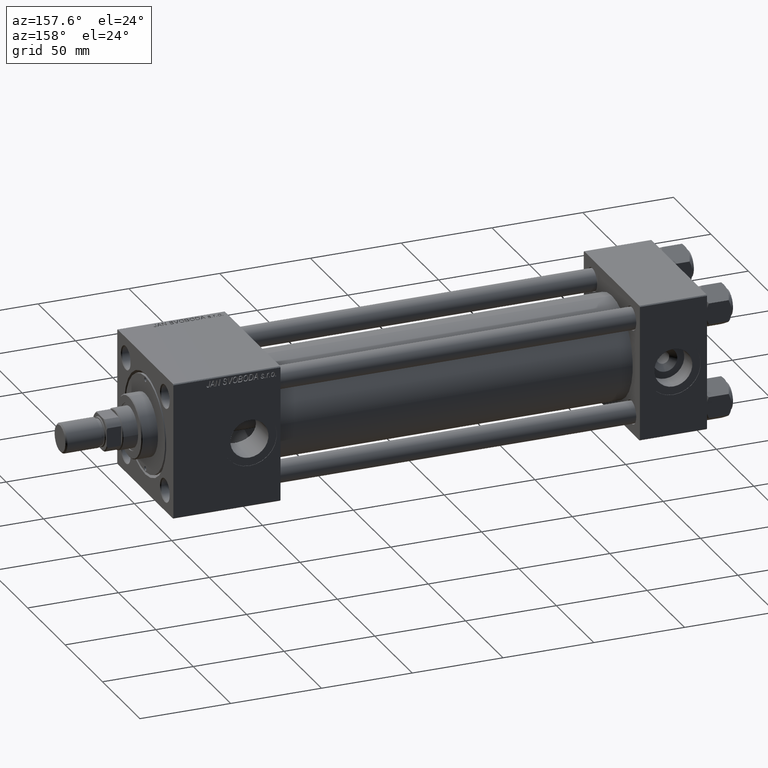
[diagram: clean part render]
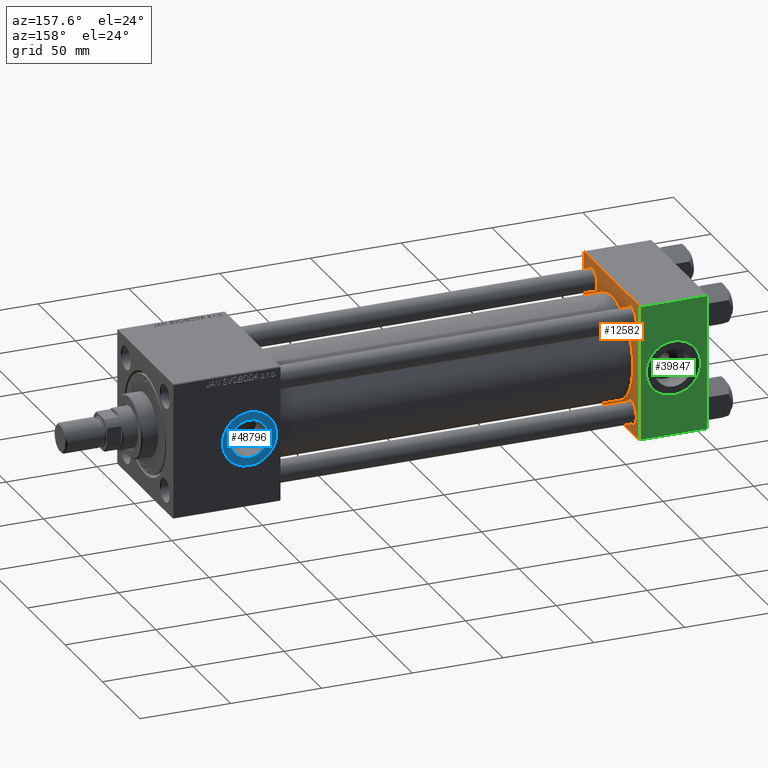
[diagram: same view with three faces highlighted in distinct colors, each labeled with its STEP entity id]
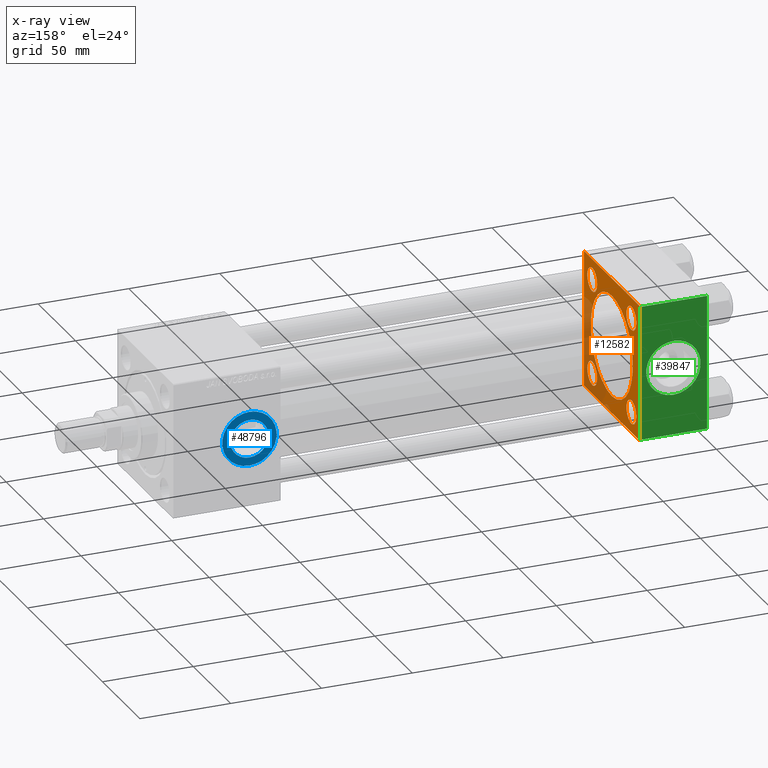
[diagram: x-ray of the same camera — body ghosted, the three highlighted faces saturated]
A machine part, auxiliary view with three faces highlighted in distinct colors.
The next image is the same camera in x-ray (body ghosted, the three faces saturated) — at least one of them is partly hidden behind the body in this view.
Their STEP definitions:

[orange] entity #12582 — the highlighted planar face has unit normal (-1, 0, 0).
#255 = EDGE_CURVE ( 'NONE', #44581, #46013, #25459, .T. ) ;
#289 = CARTESIAN_POINT ( 'NONE',  ( 37.00000000000000000, -26.14999999999999147, 19.65000000000000213 ) ) ;
#762 = FACE_OUTER_BOUND ( 'NONE', #45639, .T. ) ;
#1366 = CIRCLE ( 'NONE', #23532, 6.500000000000008882 ) ;
#1973 = DIRECTION ( 'NONE',  ( -1.000000000000000000, 0.000000000000000000, -0.000000000000000000 ) ) ;
#2186 = ORIENTED_EDGE ( 'NONE', *, *, #34158, .T. ) ;
#2207 = DIRECTION ( 'NONE',  ( -1.000000000000000000, 0.000000000000000000, -0.000000000000000000 ) ) ;
#2422 = ORIENTED_EDGE ( 'NONE', *, *, #8521, .T. ) ;
#3099 = DIRECTION ( 'NONE',  ( 0.000000000000000000, 0.000000000000000000, 1.000000000000000000 ) ) ;
#3203 = CARTESIAN_POINT ( 'NONE',  ( 37.00000000000000000, -37.50000000000000000, -37.00000000000003553 ) ) ;
#3360 = CARTESIAN_POINT ( 'NONE',  ( 37.00000000000000000, 26.14999999999999858, -32.65000000000000568 ) ) ;
#3429 = CARTESIAN_POINT ( 'NONE',  ( 37.00000000000000000, -37.50000000000000711, 37.49999999999999289 ) ) ;
#3978 = CARTESIAN_POINT ( 'NONE',  ( 37.00000000000000000, -37.50000000000000711, 36.99999999999999289 ) ) ;
#4090 = EDGE_CURVE ( 'NONE', #16470, #23490, #27183, .T. ) ;
#4287 = ORIENTED_EDGE ( 'NONE', *, *, #50598, .T. ) ;
#4623 = CARTESIAN_POINT ( 'NONE',  ( 37.00000000000000000, 0.000000000000000000, 0.000000000000000000 ) ) ;
#4667 = CARTESIAN_POINT ( 'NONE',  ( 37.00000000000000711, -2.602085213965210642E-15, 0.000000000000000000 ) ) ;
#4882 = FACE_BOUND ( 'NONE', #41308, .T. ) ;
#4983 = CARTESIAN_POINT ( 'NONE',  ( 37.00000000000000000, 37.49999999999999289, 37.50000000000000000 ) ) ;
#5054 = AXIS2_PLACEMENT_3D ( 'NONE', #4667, #12893, #9286 ) ;
#5485 = CARTESIAN_POINT ( 'NONE',  ( 37.00000000000000000, 36.99999999999999289, 37.50000000000000000 ) ) ;
#5754 = CIRCLE ( 'NONE', #35268, 6.500000000000002665 ) ;
#5974 = DIRECTION ( 'NONE',  ( -1.000000000000000000, 0.000000000000000000, -0.000000000000000000 ) ) ;
#6064 = DIRECTION ( 'NONE',  ( 0.000000000000000000, 0.000000000000000000, 1.000000000000000000 ) ) ;
#6203 = EDGE_CURVE ( 'NONE', #28345, #32893, #32126, .T. ) ;
#6663 = CARTESIAN_POINT ( 'NONE',  ( 37.00000000000000711, -2.602085213965210642E-15, 0.000000000000000000 ) ) ;
#6678 = EDGE_LOOP ( 'NONE', ( #26174, #4287 ) ) ;
#7141 = CIRCLE ( 'NONE', #30916, 6.500000000000002665 ) ;
#7532 = LINE ( 'NONE', #19617, #33572 ) ;
#7903 = VECTOR ( 'NONE', #17633, 1000.000000000000000 ) ;
#8521 = EDGE_CURVE ( 'NONE', #12115, #23452, #25531, .T. ) ;
#8741 = EDGE_CURVE ( 'NONE', #32208, #15024, #37877, .T. ) ;
#8877 = ORIENTED_EDGE ( 'NONE', *, *, #39953, .T. ) ;
#9286 = DIRECTION ( 'NONE',  ( 0.000000000000000000, 0.000000000000000000, 1.000000000000000000 ) ) ;
#9583 = CARTESIAN_POINT ( 'NONE',  ( 37.00000000000000000, 26.14999999999999858, 26.15000000000000213 ) ) ;
#12115 = VERTEX_POINT ( 'NONE', #3203 ) ;
#12154 = DIRECTION ( 'NONE',  ( 0.000000000000000000, -1.000000000000000000, -9.251858538542971581E-17 ) ) ;
#12225 = DIRECTION ( 'NONE',  ( 0.000000000000000000, 0.000000000000000000, 1.000000000000000000 ) ) ;
#12338 = CARTESIAN_POINT ( 'NONE',  ( 37.00000000000000000, 36.99999999999999289, 37.50000000000000000 ) ) ;
#12527 = CARTESIAN_POINT ( 'NONE',  ( 37.00000000000000000, -26.14999999999999147, -26.15000000000000924 ) ) ;
#12582 = ADVANCED_FACE ( 'NONE', ( #17641, #20037, #48967, #4882, #41286, #762 ), #16698, .F. ) ;
#12583 = AXIS2_PLACEMENT_3D ( 'NONE', #4623, #2207, #17899 ) ;
#12699 = DIRECTION ( 'NONE',  ( 0.000000000000000000, 0.000000000000000000, -1.000000000000000000 ) ) ;
#12893 = DIRECTION ( 'NONE',  ( 1.000000000000000000, -0.000000000000000000, 0.000000000000000000 ) ) ;
#13251 = CARTESIAN_POINT ( 'NONE',  ( 37.00000000000000000, 26.14999999999999858, 19.64999999999999858 ) ) ;
#13770 = CARTESIAN_POINT ( 'NONE',  ( 37.00000000000000000, -26.14999999999999147, 26.15000000000000924 ) ) ;
#14189 = DIRECTION ( 'NONE',  ( 0.000000000000000000, 0.000000000000000000, 1.000000000000000000 ) ) ;
#14514 = DIRECTION ( 'NONE',  ( 0.000000000000000000, 9.251858538542971581E-17, -1.000000000000000000 ) ) ;
#14685 = DIRECTION ( 'NONE',  ( -1.000000000000000000, 0.000000000000000000, -0.000000000000000000 ) ) ;
#15024 = VERTEX_POINT ( 'NONE', #18917 ) ;
#15457 = DIRECTION ( 'NONE',  ( -0.000000000000000000, -0.7071067811865474617, -0.7071067811865474617 ) ) ;
#15642 = ORIENTED_EDGE ( 'NONE', *, *, #8741, .F. ) ;
#16006 = CARTESIAN_POINT ( 'NONE',  ( 37.00000000000000000, 26.14999999999999858, -19.65000000000000213 ) ) ;
#16224 = VERTEX_POINT ( 'NONE', #3360 ) ;
#16337 = DIRECTION ( 'NONE',  ( -1.000000000000000000, 0.000000000000000000, -0.000000000000000000 ) ) ;
#16470 = VERTEX_POINT ( 'NONE', #25168 ) ;
#16698 = PLANE ( 'NONE',  #12583 ) ;
#17047 = EDGE_LOOP ( 'NONE', ( #26974, #38414 ) ) ;
#17633 = DIRECTION ( 'NONE',  ( 0.000000000000000000, -1.000000000000000000, -9.251858538542972814E-17 ) ) ;
#17641 = FACE_BOUND ( 'NONE', #17047, .T. ) ;
#17899 = DIRECTION ( 'NONE',  ( -0.000000000000000000, 0.000000000000000000, 1.000000000000000000 ) ) ;
#18159 = AXIS2_PLACEMENT_3D ( 'NONE', #39965, #16337, #12225 ) ;
#18878 = AXIS2_PLACEMENT_3D ( 'NONE', #9583, #5974, #14189 ) ;
#18897 = ORIENTED_EDGE ( 'NONE', *, *, #25107, .T. ) ;
#18917 = CARTESIAN_POINT ( 'NONE',  ( 37.00000000000000711, 8.269258236473784371E-16, -28.00000000000000000 ) ) ;
#18928 = CIRCLE ( 'NONE', #47633, 6.500000000000002665 ) ;
#19392 = DIRECTION ( 'NONE',  ( -1.000000000000000000, 0.000000000000000000, -0.000000000000000000 ) ) ;
#19617 = CARTESIAN_POINT ( 'NONE',  ( 37.00000000000000000, 37.49999999999999289, 37.50000000000000000 ) ) ;
#19729 = DIRECTION ( 'NONE',  ( -1.000000000000000000, 0.000000000000000000, -0.000000000000000000 ) ) ;
#20037 = FACE_BOUND ( 'NONE', #6678, .T. ) ;
#20180 = EDGE_CURVE ( 'NONE', #23490, #16470, #34967, .T. ) ;
#20670 = VERTEX_POINT ( 'NONE', #3978 ) ;
#20672 = CARTESIAN_POINT ( 'NONE',  ( 37.00000000000000000, -37.00000000000002132, -37.50000000000000711 ) ) ;
#21672 = CARTESIAN_POINT ( 'NONE',  ( 37.00000000000000000, -37.00000000000002132, -37.50000000000000711 ) ) ;
#21808 = VERTEX_POINT ( 'NONE', #37197 ) ;
#21971 = CARTESIAN_POINT ( 'NONE',  ( 37.00000000000000000, 37.49999999999999289, -36.99999999999998579 ) ) ;
#22427 = VERTEX_POINT ( 'NONE', #289 ) ;
#22430 = DIRECTION ( 'NONE',  ( 0.000000000000000000, 0.7071067811865524577, -0.7071067811865426878 ) ) ;
#22568 = EDGE_CURVE ( 'NONE', #43385, #31787, #38025, .T. ) ;
#22861 = VECTOR ( 'NONE', #14514, 1000.000000000000000 ) ;
#23424 = LINE ( 'NONE', #28744, #45721 ) ;
#23452 = VERTEX_POINT ( 'NONE', #20672 ) ;
#23490 = VERTEX_POINT ( 'NONE', #34477 ) ;
#23532 = AXIS2_PLACEMENT_3D ( 'NONE', #49865, #14685, #3099 ) ;
#23846 = EDGE_CURVE ( 'NONE', #43385, #23452, #33305, .T. ) ;
#24266 = LINE ( 'NONE', #4983, #37258 ) ;
#24380 = DIRECTION ( 'NONE',  ( 0.000000000000000000, 0.000000000000000000, 1.000000000000000000 ) ) ;
#25107 = EDGE_CURVE ( 'NONE', #21808, #22427, #1366, .T. ) ;
#25168 = CARTESIAN_POINT ( 'NONE',  ( 37.00000000000000000, -26.14999999999999147, -19.65000000000000924 ) ) ;
#25301 = EDGE_CURVE ( 'NONE', #15024, #32208, #43220, .T. ) ;
#25459 = CIRCLE ( 'NONE', #18878, 6.500000000000002665 ) ;
#25509 = ORIENTED_EDGE ( 'NONE', *, *, #25301, .F. ) ;
#25531 = LINE ( 'NONE', #21672, #49343 ) ;
#25566 = DIRECTION ( 'NONE',  ( 0.000000000000000000, 0.000000000000000000, 1.000000000000000000 ) ) ;
#25651 = VECTOR ( 'NONE', #28265, 1000.000000000000114 ) ;
#25832 = ORIENTED_EDGE ( 'NONE', *, *, #23846, .F. ) ;
#26090 = LINE ( 'NONE', #3429, #22861 ) ;
#26155 = CARTESIAN_POINT ( 'NONE',  ( 37.00000000000000000, 36.99999999999997868, -37.50000000000000000 ) ) ;
#26174 = ORIENTED_EDGE ( 'NONE', *, *, #31318, .T. ) ;
#26974 = ORIENTED_EDGE ( 'NONE', *, *, #20180, .T. ) ;
#27183 = CIRCLE ( 'NONE', #18159, 6.500000000000002665 ) ;
#27795 = CARTESIAN_POINT ( 'NONE',  ( 37.00000000000000000, 26.14999999999999858, 32.65000000000001279 ) ) ;
#28265 = DIRECTION ( 'NONE',  ( 0.000000000000000000, -0.7071067811865474617, 0.7071067811865474617 ) ) ;
#28345 = VERTEX_POINT ( 'NONE', #48673 ) ;
#28744 = CARTESIAN_POINT ( 'NONE',  ( 37.00000000000000000, -37.50000000000000711, 36.99999999999999289 ) ) ;
#29553 = EDGE_LOOP ( 'NONE', ( #2186, #18897 ) ) ;
#29791 = ORIENTED_EDGE ( 'NONE', *, *, #43657, .T. ) ;
#30561 = EDGE_CURVE ( 'NONE', #32893, #31637, #7532, .T. ) ;
#30807 = DIRECTION ( 'NONE',  ( 1.000000000000000000, -0.000000000000000000, 0.000000000000000000 ) ) ;
#30916 = AXIS2_PLACEMENT_3D ( 'NONE', #30954, #19392, #50717 ) ;
#30954 = CARTESIAN_POINT ( 'NONE',  ( 37.00000000000000000, 26.14999999999999858, 26.15000000000000213 ) ) ;
#31318 = EDGE_CURVE ( 'NONE', #16224, #50056, #18928, .T. ) ;
#31323 = CARTESIAN_POINT ( 'NONE',  ( 37.00000000000000711, -2.602085213965210642E-15, 28.00000000000000000 ) ) ;
#31548 = CIRCLE ( 'NONE', #42181, 6.500000000000008882 ) ;
#31637 = VERTEX_POINT ( 'NONE', #45139 ) ;
#31787 = VERTEX_POINT ( 'NONE', #21971 ) ;
#32126 = LINE ( 'NONE', #12338, #25651 ) ;
#32208 = VERTEX_POINT ( 'NONE', #31323 ) ;
#32583 = CARTESIAN_POINT ( 'NONE',  ( 37.00000000000000000, 26.14999999999999858, -26.15000000000000213 ) ) ;
#32893 = VERTEX_POINT ( 'NONE', #5485 ) ;
#33305 = LINE ( 'NONE', #40513, #7903 ) ;
#33550 = DIRECTION ( 'NONE',  ( -1.000000000000000000, 0.000000000000000000, -0.000000000000000000 ) ) ;
#33572 = VECTOR ( 'NONE', #12154, 1000.000000000000000 ) ;
#33585 = EDGE_CURVE ( 'NONE', #28345, #31787, #24266, .T. ) ;
#34158 = EDGE_CURVE ( 'NONE', #22427, #21808, #31548, .T. ) ;
#34477 = CARTESIAN_POINT ( 'NONE',  ( 37.00000000000000000, -26.14999999999999147, -32.65000000000001279 ) ) ;
#34967 = CIRCLE ( 'NONE', #39088, 6.500000000000002665 ) ;
#35268 = AXIS2_PLACEMENT_3D ( 'NONE', #37116, #48675, #25566 ) ;
#35435 = ORIENTED_EDGE ( 'NONE', *, *, #33585, .F. ) ;
#35641 = DIRECTION ( 'NONE',  ( 0.000000000000000000, 0.000000000000000000, 1.000000000000000000 ) ) ;
#36939 = ORIENTED_EDGE ( 'NONE', *, *, #44070, .T. ) ;
#37116 = CARTESIAN_POINT ( 'NONE',  ( 37.00000000000000000, 26.14999999999999858, -26.15000000000000213 ) ) ;
#37197 = CARTESIAN_POINT ( 'NONE',  ( 37.00000000000000000, -26.14999999999999147, 32.65000000000001990 ) ) ;
#37258 = VECTOR ( 'NONE', #12699, 1000.000000000000000 ) ;
#37877 = CIRCLE ( 'NONE', #5054, 28.00000000000000000 ) ;
#38025 = LINE ( 'NONE', #49824, #40703 ) ;
#38414 = ORIENTED_EDGE ( 'NONE', *, *, #4090, .T. ) ;
#38696 = ORIENTED_EDGE ( 'NONE', *, *, #6203, .T. ) ;
#39088 = AXIS2_PLACEMENT_3D ( 'NONE', #12527, #19729, #35641 ) ;
#39533 = ORIENTED_EDGE ( 'NONE', *, *, #30561, .T. ) ;
#39953 = EDGE_CURVE ( 'NONE', #46013, #44581, #7141, .T. ) ;
#39965 = CARTESIAN_POINT ( 'NONE',  ( 37.00000000000000000, -26.14999999999999147, -26.15000000000000924 ) ) ;
#40513 = CARTESIAN_POINT ( 'NONE',  ( 37.00000000000000000, 37.49999999999999289, -37.50000000000000000 ) ) ;
#40531 = EDGE_LOOP ( 'NONE', ( #15642, #25509 ) ) ;
#40703 = VECTOR ( 'NONE', #49574, 1000.000000000000114 ) ;
#41286 = FACE_BOUND ( 'NONE', #40531, .T. ) ;
#41308 = EDGE_LOOP ( 'NONE', ( #47049, #8877 ) ) ;
#41345 = ORIENTED_EDGE ( 'NONE', *, *, #22568, .T. ) ;
#42124 = DIRECTION ( 'NONE',  ( 0.000000000000000000, 0.000000000000000000, 1.000000000000000000 ) ) ;
#42181 = AXIS2_PLACEMENT_3D ( 'NONE', #13770, #33550, #6064 ) ;
#43220 = CIRCLE ( 'NONE', #46509, 28.00000000000000000 ) ;
#43385 = VERTEX_POINT ( 'NONE', #26155 ) ;
#43657 = EDGE_CURVE ( 'NONE', #20670, #12115, #26090, .T. ) ;
#44070 = EDGE_CURVE ( 'NONE', #31637, #20670, #23424, .T. ) ;
#44581 = VERTEX_POINT ( 'NONE', #13251 ) ;
#45139 = CARTESIAN_POINT ( 'NONE',  ( 37.00000000000000000, -37.00000000000000711, 37.49999999999999289 ) ) ;
#45639 = EDGE_LOOP ( 'NONE', ( #25832, #41345, #35435, #38696, #39533, #36939, #29791, #2422 ) ) ;
#45721 = VECTOR ( 'NONE', #15457, 1000.000000000000114 ) ;
#46013 = VERTEX_POINT ( 'NONE', #27795 ) ;
#46509 = AXIS2_PLACEMENT_3D ( 'NONE', #6663, #30807, #42124 ) ;
#47049 = ORIENTED_EDGE ( 'NONE', *, *, #255, .T. ) ;
#47633 = AXIS2_PLACEMENT_3D ( 'NONE', #32583, #1973, #24380 ) ;
#48673 = CARTESIAN_POINT ( 'NONE',  ( 37.00000000000000000, 37.49999999999999289, 37.00000000000000000 ) ) ;
#48675 = DIRECTION ( 'NONE',  ( -1.000000000000000000, 0.000000000000000000, -0.000000000000000000 ) ) ;
#48967 = FACE_BOUND ( 'NONE', #29553, .T. ) ;
#49343 = VECTOR ( 'NONE', #22430, 1000.000000000000000 ) ;
#49574 = DIRECTION ( 'NONE',  ( -0.000000000000000000, 0.7071067811865474617, 0.7071067811865474617 ) ) ;
#49824 = CARTESIAN_POINT ( 'NONE',  ( 37.00000000000000000, 37.49999999999999289, -36.99999999999998579 ) ) ;
#49865 = CARTESIAN_POINT ( 'NONE',  ( 37.00000000000000000, -26.14999999999999147, 26.15000000000000924 ) ) ;
#50056 = VERTEX_POINT ( 'NONE', #16006 ) ;
#50598 = EDGE_CURVE ( 'NONE', #50056, #16224, #5754, .T. ) ;
#50717 = DIRECTION ( 'NONE',  ( 0.000000000000000000, 0.000000000000000000, 1.000000000000000000 ) ) ;

[blue] entity #48796 — the highlighted planar face has unit normal (0, 1, 0).
#553 = EDGE_CURVE ( 'NONE', #9110, #34840, #46740, .T. ) ;
#3403 = EDGE_CURVE ( 'NONE', #34359, #33587, #41159, .T. ) ;
#4373 = DIRECTION ( 'NONE',  ( 0.000000000000000000, 1.000000000000000000, 0.000000000000000000 ) ) ;
#4893 = CARTESIAN_POINT ( 'NONE',  ( 252.0000000000000000, 37.29999999999999716, 0.000000000000000000 ) ) ;
#6413 = ORIENTED_EDGE ( 'NONE', *, *, #553, .F. ) ;
#8207 = AXIS2_PLACEMENT_3D ( 'NONE', #8377, #11459, #27151 ) ;
#8377 = CARTESIAN_POINT ( 'NONE',  ( 252.0000000000000000, 37.29999999999999005, 0.000000000000000000 ) ) ;
#9110 = VERTEX_POINT ( 'NONE', #40450 ) ;
#9722 = CIRCLE ( 'NONE', #10523, 15.00000000000002487 ) ;
#10288 = DIRECTION ( 'NONE',  ( 0.000000000000000000, 1.000000000000000000, 0.000000000000000000 ) ) ;
#10523 = AXIS2_PLACEMENT_3D ( 'NONE', #14392, #10288, #22364 ) ;
#11459 = DIRECTION ( 'NONE',  ( 0.000000000000000000, 1.000000000000000000, 0.000000000000000000 ) ) ;
#13858 = CARTESIAN_POINT ( 'NONE',  ( 252.0000000000000000, 37.29999999999999005, 0.000000000000000000 ) ) ;
#14392 = CARTESIAN_POINT ( 'NONE',  ( 252.0000000000000000, 37.29999999999999716, 0.000000000000000000 ) ) ;
#17531 = ORIENTED_EDGE ( 'NONE', *, *, #3403, .T. ) ;
#18846 = PLANE ( 'NONE',  #45060 ) ;
#19316 = CIRCLE ( 'NONE', #28341, 10.47999999999998622 ) ;
#19351 = FACE_BOUND ( 'NONE', #44804, .T. ) ;
#21352 = EDGE_CURVE ( 'NONE', #34840, #9110, #19316, .T. ) ;
#22054 = EDGE_LOOP ( 'NONE', ( #49687, #17531 ) ) ;
#22364 = DIRECTION ( 'NONE',  ( 0.000000000000000000, 0.000000000000000000, 1.000000000000000000 ) ) ;
#23607 = ORIENTED_EDGE ( 'NONE', *, *, #21352, .F. ) ;
#25684 = DIRECTION ( 'NONE',  ( 0.000000000000000000, 1.000000000000000000, 0.000000000000000000 ) ) ;
#27151 = DIRECTION ( 'NONE',  ( 0.000000000000000000, 0.000000000000000000, 1.000000000000000000 ) ) ;
#27550 = CARTESIAN_POINT ( 'NONE',  ( 252.0000000000000000, 37.29999999999999005, 10.47999999999998622 ) ) ;
#28341 = AXIS2_PLACEMENT_3D ( 'NONE', #13858, #25684, #45188 ) ;
#30410 = DIRECTION ( 'NONE',  ( 0.000000000000000000, -0.000000000000000000, 1.000000000000000000 ) ) ;
#32389 = DIRECTION ( 'NONE',  ( 0.000000000000000000, 0.000000000000000000, 1.000000000000000000 ) ) ;
#32937 = AXIS2_PLACEMENT_3D ( 'NONE', #4893, #4373, #32389 ) ;
#33587 = VERTEX_POINT ( 'NONE', #39163 ) ;
#34359 = VERTEX_POINT ( 'NONE', #50719 ) ;
#34840 = VERTEX_POINT ( 'NONE', #27550 ) ;
#38615 = CARTESIAN_POINT ( 'NONE',  ( 252.0000000000000000, 37.29999999999999716, 0.000000000000000000 ) ) ;
#38866 = FACE_OUTER_BOUND ( 'NONE', #22054, .T. ) ;
#39163 = CARTESIAN_POINT ( 'NONE',  ( 252.0000000000000000, 37.29999999999999716, 15.00000000000002487 ) ) ;
#40450 = CARTESIAN_POINT ( 'NONE',  ( 252.0000000000000000, 37.29999999999999005, -10.47999999999998622 ) ) ;
#41159 = CIRCLE ( 'NONE', #32937, 15.00000000000002487 ) ;
#44804 = EDGE_LOOP ( 'NONE', ( #23607, #6413 ) ) ;
#45060 = AXIS2_PLACEMENT_3D ( 'NONE', #38615, #50162, #30410 ) ;
#45188 = DIRECTION ( 'NONE',  ( 0.000000000000000000, 0.000000000000000000, 1.000000000000000000 ) ) ;
#46166 = EDGE_CURVE ( 'NONE', #33587, #34359, #9722, .T. ) ;
#46740 = CIRCLE ( 'NONE', #8207, 10.47999999999998622 ) ;
#48796 = ADVANCED_FACE ( 'NONE', ( #19351, #38866 ), #18846, .T. ) ;
#49687 = ORIENTED_EDGE ( 'NONE', *, *, #46166, .T. ) ;
#50162 = DIRECTION ( 'NONE',  ( 0.000000000000000000, 1.000000000000000000, 0.000000000000000000 ) ) ;
#50719 = CARTESIAN_POINT ( 'NONE',  ( 252.0000000000000000, 37.29999999999999716, -15.00000000000002487 ) ) ;

[green] entity #39847 — the highlighted planar face has unit normal (0, 1, 0).
#1951 = DIRECTION ( 'NONE',  ( 1.000000000000000000, 0.000000000000000000, 0.000000000000000000 ) ) ;
#2208 = LINE ( 'NONE', #2455, #10264 ) ;
#2455 = CARTESIAN_POINT ( 'NONE',  ( 37.00000000000000000, 37.49999999999999289, 37.00000000000000000 ) ) ;
#2692 = DIRECTION ( 'NONE',  ( 0.000000000000000000, 0.000000000000000000, 1.000000000000000000 ) ) ;
#3262 = VERTEX_POINT ( 'NONE', #27260 ) ;
#3944 = VECTOR ( 'NONE', #30001, 1000.000000000000000 ) ;
#4983 = CARTESIAN_POINT ( 'NONE',  ( 37.00000000000000000, 37.49999999999999289, 37.50000000000000000 ) ) ;
#5270 = DIRECTION ( 'NONE',  ( 0.000000000000000000, 0.000000000000000000, -1.000000000000000000 ) ) ;
#6255 = AXIS2_PLACEMENT_3D ( 'NONE', #26369, #18144, #49467 ) ;
#7683 = ORIENTED_EDGE ( 'NONE', *, *, #33585, .T. ) ;
#9826 = ORIENTED_EDGE ( 'NONE', *, *, #42673, .F. ) ;
#10264 = VECTOR ( 'NONE', #1951, 1000.000000000000000 ) ;
#12699 = DIRECTION ( 'NONE',  ( 0.000000000000000000, 0.000000000000000000, -1.000000000000000000 ) ) ;
#12796 = EDGE_LOOP ( 'NONE', ( #49501, #37693 ) ) ;
#13768 = DIRECTION ( 'NONE',  ( 0.000000000000000000, -0.000000000000000000, 1.000000000000000000 ) ) ;
#14633 = VERTEX_POINT ( 'NONE', #41098 ) ;
#15267 = CIRCLE ( 'NONE', #6255, 15.00000000000000178 ) ;
#16093 = CARTESIAN_POINT ( 'NONE',  ( 18.50000000000000000, 37.49999999999999289, 15.00000000000000178 ) ) ;
#17608 = EDGE_CURVE ( 'NONE', #46527, #28345, #2208, .T. ) ;
#18134 = DIRECTION ( 'NONE',  ( -0.000000000000000000, 1.000000000000000000, 0.000000000000000000 ) ) ;
#18144 = DIRECTION ( 'NONE',  ( 0.000000000000000000, 1.000000000000000000, 0.000000000000000000 ) ) ;
#19188 = LINE ( 'NONE', #49754, #3944 ) ;
#21971 = CARTESIAN_POINT ( 'NONE',  ( 37.00000000000000000, 37.49999999999999289, -36.99999999999998579 ) ) ;
#24005 = EDGE_CURVE ( 'NONE', #43512, #14633, #15267, .T. ) ;
#24266 = LINE ( 'NONE', #4983, #37258 ) ;
#25848 = PLANE ( 'NONE',  #26016 ) ;
#26016 = AXIS2_PLACEMENT_3D ( 'NONE', #49705, #18134, #13768 ) ;
#26369 = CARTESIAN_POINT ( 'NONE',  ( 18.50000000000000000, 37.49999999999999289, 0.000000000000000000 ) ) ;
#27260 = CARTESIAN_POINT ( 'NONE',  ( 0.000000000000000000, 37.49999999999999289, -36.99999999999998579 ) ) ;
#27857 = CARTESIAN_POINT ( 'NONE',  ( 0.000000000000000000, 37.49999999999999289, 37.00000000000000000 ) ) ;
#28345 = VERTEX_POINT ( 'NONE', #48673 ) ;
#28916 = CARTESIAN_POINT ( 'NONE',  ( 0.000000000000000000, 37.49999999999999289, 37.50000000000000000 ) ) ;
#30001 = DIRECTION ( 'NONE',  ( -1.000000000000000000, 0.000000000000000000, 0.000000000000000000 ) ) ;
#30462 = DIRECTION ( 'NONE',  ( 0.000000000000000000, 1.000000000000000000, 0.000000000000000000 ) ) ;
#30986 = VECTOR ( 'NONE', #5270, 1000.000000000000000 ) ;
#31604 = EDGE_LOOP ( 'NONE', ( #7683, #41295, #9826, #38906 ) ) ;
#31787 = VERTEX_POINT ( 'NONE', #21971 ) ;
#33262 = CIRCLE ( 'NONE', #39833, 15.00000000000000178 ) ;
#33585 = EDGE_CURVE ( 'NONE', #28345, #31787, #24266, .T. ) ;
#37258 = VECTOR ( 'NONE', #12699, 1000.000000000000000 ) ;
#37348 = EDGE_CURVE ( 'NONE', #14633, #43512, #33262, .T. ) ;
#37693 = ORIENTED_EDGE ( 'NONE', *, *, #37348, .F. ) ;
#37903 = FACE_OUTER_BOUND ( 'NONE', #31604, .T. ) ;
#38906 = ORIENTED_EDGE ( 'NONE', *, *, #17608, .T. ) ;
#39833 = AXIS2_PLACEMENT_3D ( 'NONE', #41778, #30462, #2692 ) ;
#39847 = ADVANCED_FACE ( 'NONE', ( #41520, #37903 ), #25848, .T. ) ;
#40477 = LINE ( 'NONE', #28916, #30986 ) ;
#41098 = CARTESIAN_POINT ( 'NONE',  ( 18.50000000000000355, 37.49999999999999289, -15.00000000000000178 ) ) ;
#41295 = ORIENTED_EDGE ( 'NONE', *, *, #43380, .T. ) ;
#41520 = FACE_BOUND ( 'NONE', #12796, .T. ) ;
#41778 = CARTESIAN_POINT ( 'NONE',  ( 18.50000000000000000, 37.49999999999999289, 0.000000000000000000 ) ) ;
#42673 = EDGE_CURVE ( 'NONE', #46527, #3262, #40477, .T. ) ;
#43380 = EDGE_CURVE ( 'NONE', #31787, #3262, #19188, .T. ) ;
#43512 = VERTEX_POINT ( 'NONE', #16093 ) ;
#46527 = VERTEX_POINT ( 'NONE', #27857 ) ;
#48673 = CARTESIAN_POINT ( 'NONE',  ( 37.00000000000000000, 37.49999999999999289, 37.00000000000000000 ) ) ;
#49467 = DIRECTION ( 'NONE',  ( 0.000000000000000000, 0.000000000000000000, 1.000000000000000000 ) ) ;
#49501 = ORIENTED_EDGE ( 'NONE', *, *, #24005, .F. ) ;
#49705 = CARTESIAN_POINT ( 'NONE',  ( 37.00000000000000000, 37.49999999999999289, 37.50000000000000000 ) ) ;
#49754 = CARTESIAN_POINT ( 'NONE',  ( 37.00000000000000000, 37.49999999999999289, -36.99999999999998579 ) ) ;